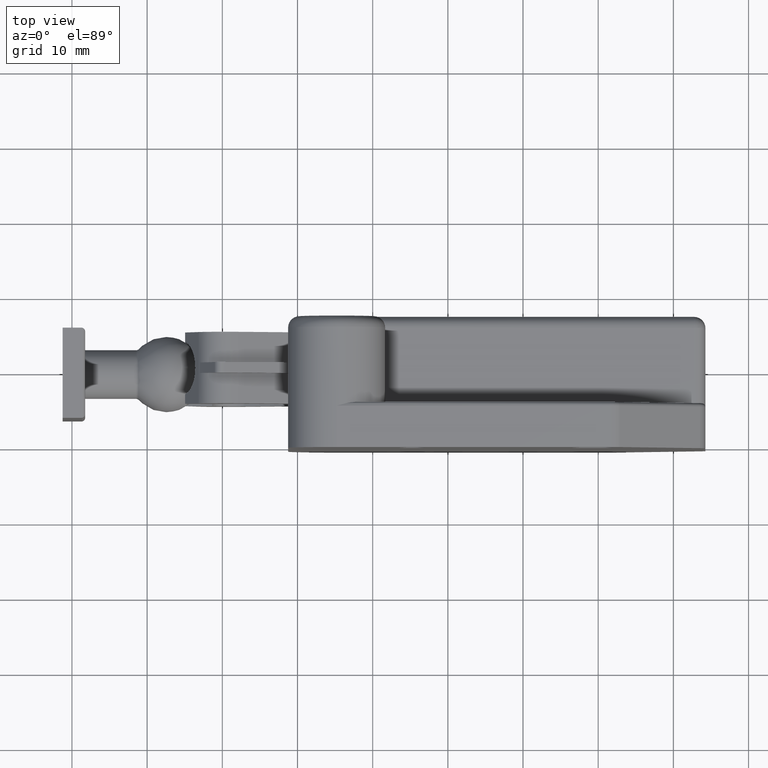
[diagram: clean part render]
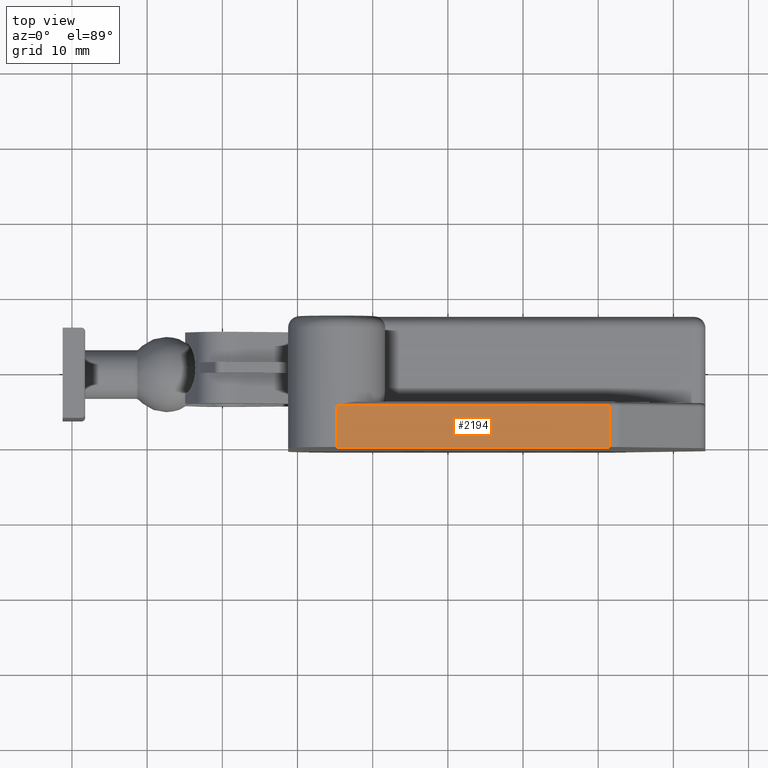
[diagram: same view with one face highlighted and labeled with its STEP entity id]
A machine part, top view. The second image highlights one B-rep face of the part: STEP entity #2194.
In plain terms, the highlighted planar face has unit normal (-0, 0, 1).
Its self-contained STEP definition (entity closure, byte-faithful):
#80=PLANE('',#2353);
#164=LINE('',#3355,#360);
#172=LINE('',#3406,#368);
#173=LINE('',#3410,#369);
#174=LINE('',#3411,#370);
#360=VECTOR('',#2625,36.3259001296374);
#368=VECTOR('',#2669,5.5);
#369=VECTOR('',#2674,5.5);
#370=VECTOR('',#2675,36.3259001296374);
#616=FACE_OUTER_BOUND('',#747,.T.);
#747=EDGE_LOOP('',(#1596,#1597,#1598,#1599));
#1012=VERTEX_POINT('',#3343);
#1015=VERTEX_POINT('',#3348);
#1028=VERTEX_POINT('',#3405);
#1029=VERTEX_POINT('',#3409);
#1232=EDGE_CURVE('',#1015,#1012,#164,.T.);
#1252=EDGE_CURVE('',#1012,#1028,#172,.T.);
#1254=EDGE_CURVE('',#1029,#1015,#173,.T.);
#1255=EDGE_CURVE('',#1028,#1029,#174,.T.);
#1596=ORIENTED_EDGE('',*,*,#1232,.F.);
#1597=ORIENTED_EDGE('',*,*,#1254,.F.);
#1598=ORIENTED_EDGE('',*,*,#1255,.F.);
#1599=ORIENTED_EDGE('',*,*,#1252,.F.);
#2194=ADVANCED_FACE('',(#616),#80,.T.);
#2353=AXIS2_PLACEMENT_3D('',#3408,#2672,#2673);
#2625=DIRECTION('',(-3.59586404736893E-16,-1.,0.));
#2669=DIRECTION('',(0.,0.,-1.));
#2672=DIRECTION('center_axis',(-1.,3.59586404736893E-16,0.));
#2673=DIRECTION('ref_axis',(-3.5527136788005E-16,-1.,0.));
#2674=DIRECTION('',(0.,0.,1.));
#2675=DIRECTION('',(3.59586404736893E-16,1.,0.));
#3343=CARTESIAN_POINT('',(-21.5,-15.0259001296373,5.5));
#3348=CARTESIAN_POINT('',(-21.5,21.3,5.5));
#3355=CARTESIAN_POINT('',(-21.5,10.9646490264175,5.5));
#3405=CARTESIAN_POINT('',(-21.5,-15.0259001296373,0.));
#3406=CARTESIAN_POINT('',(-21.5,-15.0259001296373,0.));
#3408=CARTESIAN_POINT('Origin',(-21.5,21.3,0.));
#3409=CARTESIAN_POINT('',(-21.5,21.3,0.));
#3410=CARTESIAN_POINT('',(-21.5,21.3,0.));
#3411=CARTESIAN_POINT('',(-21.5,-15.75,0.));